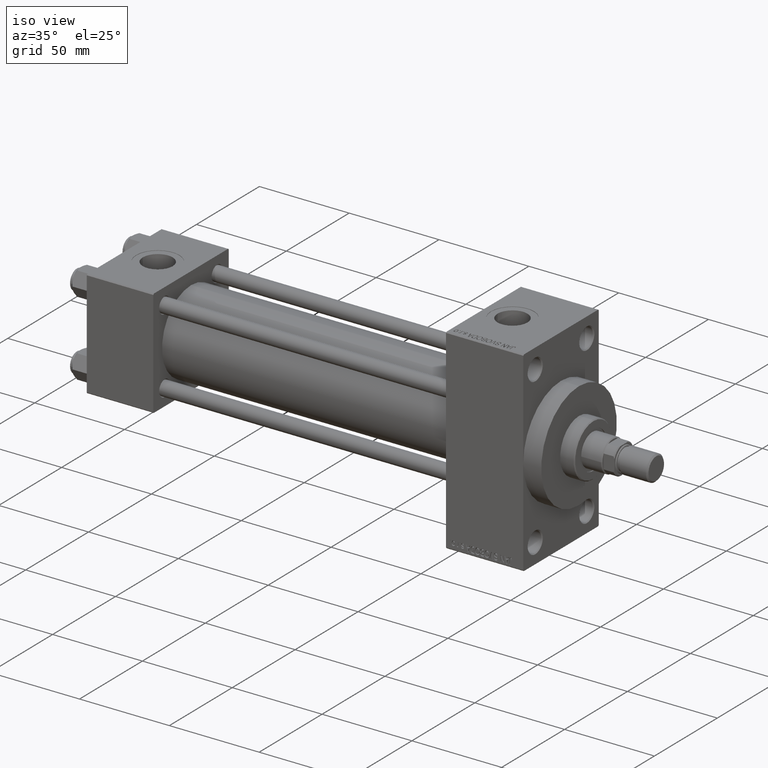
[diagram: clean part render]
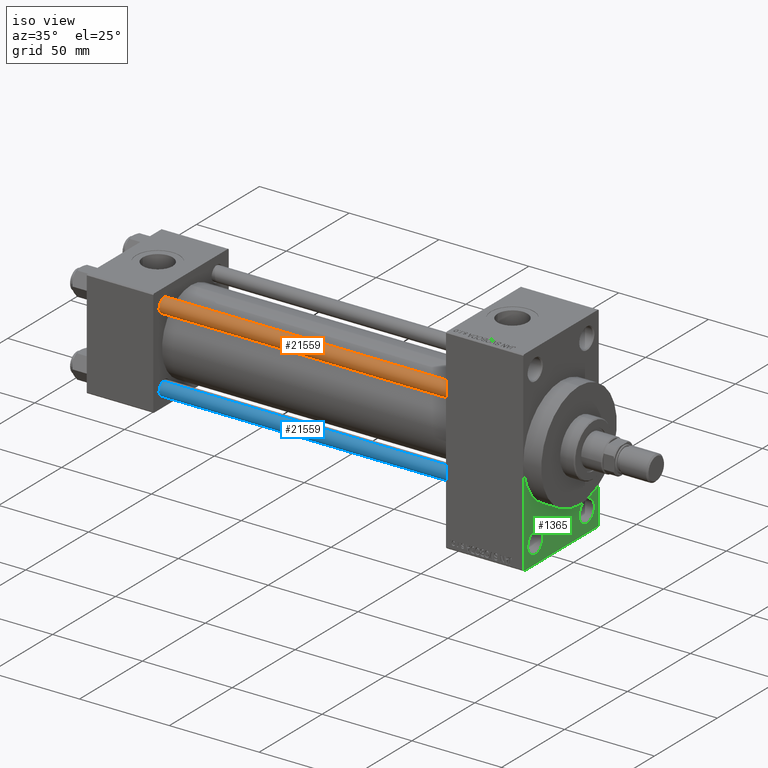
[diagram: same view with three faces highlighted in distinct colors, each labeled with its STEP entity id]
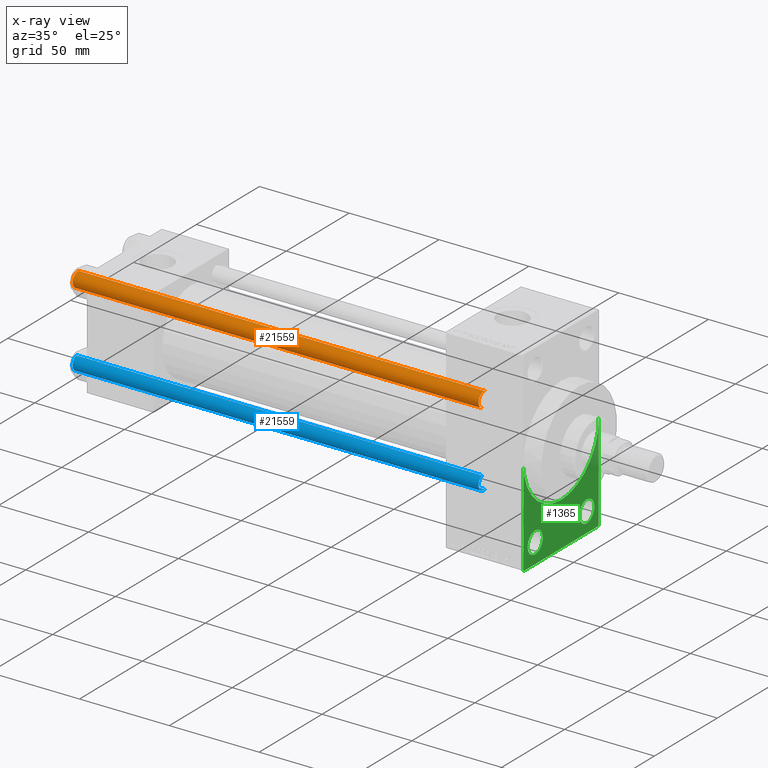
[diagram: x-ray of the same camera — body ghosted, the three highlighted faces saturated]
A machine part, iso view with three faces highlighted in distinct colors.
The next image is the same camera in x-ray (body ghosted, the three faces saturated) — at least one of them is partly hidden behind the body in this view.
Their STEP definitions:

[orange] entity #21559 — the highlighted cylindrical surface (edge-blend (fillet) strip) has radius 4 mm, axis along (1, 0, 0).
#514 = DIRECTION ( 'NONE',  ( 1.000000000000000000, 0.000000000000000000, 0.000000000000000000 ) ) ;
#851 = AXIS2_PLACEMENT_3D ( 'NONE', #45218, #26087, #25352 ) ;
#4223 = ORIENTED_EDGE ( 'NONE', *, *, #14376, .T. ) ;
#7701 = AXIS2_PLACEMENT_3D ( 'NONE', #25590, #40952, #26835 ) ;
#13357 = DIRECTION ( 'NONE',  ( -0.000000000000000000, -0.000000000000000000, -1.000000000000000000 ) ) ;
#13622 = VERTEX_POINT ( 'NONE', #39863 ) ;
#14376 = EDGE_CURVE ( 'NONE', #16387, #24323, #41592, .T. ) ;
#15762 = CIRCLE ( 'NONE', #7701, 4.000000000000000000 ) ;
#16387 = VERTEX_POINT ( 'NONE', #37169 ) ;
#17559 = FACE_OUTER_BOUND ( 'NONE', #38076, .T. ) ;
#17845 = CARTESIAN_POINT ( 'NONE',  ( -4.000000000000000000, 0.000000000000000000, 0.5000000000002224887 ) ) ;
#17941 = CARTESIAN_POINT ( 'NONE',  ( 4.000000000000000000, 4.898587196589411843E-16, 227.0000000000000000 ) ) ;
#18291 = CYLINDRICAL_SURFACE ( 'NONE', #851, 4.000000000000000000 ) ;
#19593 = CIRCLE ( 'NONE', #22827, 4.000000000000000000 ) ;
#21559 = ADVANCED_FACE ( 'NONE', ( #17559 ), #18291, .T. ) ;
#22827 = AXIS2_PLACEMENT_3D ( 'NONE', #39748, #34997, #514 ) ;
#23179 = EDGE_CURVE ( 'NONE', #13622, #35416, #44314, .T. ) ;
#23380 = VECTOR ( 'NONE', #13357, 1000.000000000000000 ) ;
#24323 = VERTEX_POINT ( 'NONE', #30646 ) ;
#25352 = DIRECTION ( 'NONE',  ( -1.000000000000000000, 0.000000000000000000, 0.000000000000000000 ) ) ;
#25514 = ORIENTED_EDGE ( 'NONE', *, *, #37188, .T. ) ;
#25590 = CARTESIAN_POINT ( 'NONE',  ( 0.000000000000000000, 0.000000000000000000, 226.5000000000001421 ) ) ;
#26087 = DIRECTION ( 'NONE',  ( -0.000000000000000000, -0.000000000000000000, -1.000000000000000000 ) ) ;
#26835 = DIRECTION ( 'NONE',  ( 1.000000000000000000, 0.000000000000000000, 0.000000000000000000 ) ) ;
#29449 = CARTESIAN_POINT ( 'NONE',  ( -4.000000000000000000, 0.000000000000000000, 227.0000000000000000 ) ) ;
#30452 = VECTOR ( 'NONE', #33305, 1000.000000000000000 ) ;
#30646 = CARTESIAN_POINT ( 'NONE',  ( 4.000000000000000000, 4.898587196589411843E-16, 0.5000000000002224887 ) ) ;
#32615 = EDGE_CURVE ( 'NONE', #24323, #35416, #19593, .T. ) ;
#33305 = DIRECTION ( 'NONE',  ( -0.000000000000000000, -0.000000000000000000, -1.000000000000000000 ) ) ;
#34997 = DIRECTION ( 'NONE',  ( -0.000000000000000000, -0.000000000000000000, 1.000000000000000000 ) ) ;
#35416 = VERTEX_POINT ( 'NONE', #17845 ) ;
#37169 = CARTESIAN_POINT ( 'NONE',  ( 4.000000000000000000, 4.898587196589411843E-16, 226.5000000000001421 ) ) ;
#37188 = EDGE_CURVE ( 'NONE', #13622, #16387, #15762, .T. ) ;
#38076 = EDGE_LOOP ( 'NONE', ( #25514, #4223, #41724, #42690 ) ) ;
#39748 = CARTESIAN_POINT ( 'NONE',  ( 0.000000000000000000, 0.000000000000000000, 0.5000000000002224887 ) ) ;
#39863 = CARTESIAN_POINT ( 'NONE',  ( -4.000000000000000000, 0.000000000000000000, 226.5000000000001421 ) ) ;
#40952 = DIRECTION ( 'NONE',  ( 0.000000000000000000, 0.000000000000000000, -1.000000000000000000 ) ) ;
#41592 = LINE ( 'NONE', #17941, #30452 ) ;
#41724 = ORIENTED_EDGE ( 'NONE', *, *, #32615, .T. ) ;
#42690 = ORIENTED_EDGE ( 'NONE', *, *, #23179, .F. ) ;
#44314 = LINE ( 'NONE', #29449, #23380 ) ;
#45218 = CARTESIAN_POINT ( 'NONE',  ( 0.000000000000000000, 0.000000000000000000, 227.0000000000000000 ) ) ;

[blue] entity #21559 — the highlighted cylindrical surface (edge-blend (fillet) strip) has radius 4 mm, axis along (-1, 0, 0).
#514 = DIRECTION ( 'NONE',  ( 1.000000000000000000, 0.000000000000000000, 0.000000000000000000 ) ) ;
#851 = AXIS2_PLACEMENT_3D ( 'NONE', #45218, #26087, #25352 ) ;
#4223 = ORIENTED_EDGE ( 'NONE', *, *, #14376, .T. ) ;
#7701 = AXIS2_PLACEMENT_3D ( 'NONE', #25590, #40952, #26835 ) ;
#13357 = DIRECTION ( 'NONE',  ( -0.000000000000000000, -0.000000000000000000, -1.000000000000000000 ) ) ;
#13622 = VERTEX_POINT ( 'NONE', #39863 ) ;
#14376 = EDGE_CURVE ( 'NONE', #16387, #24323, #41592, .T. ) ;
#15762 = CIRCLE ( 'NONE', #7701, 4.000000000000000000 ) ;
#16387 = VERTEX_POINT ( 'NONE', #37169 ) ;
#17559 = FACE_OUTER_BOUND ( 'NONE', #38076, .T. ) ;
#17845 = CARTESIAN_POINT ( 'NONE',  ( -4.000000000000000000, 0.000000000000000000, 0.5000000000002224887 ) ) ;
#17941 = CARTESIAN_POINT ( 'NONE',  ( 4.000000000000000000, 4.898587196589411843E-16, 227.0000000000000000 ) ) ;
#18291 = CYLINDRICAL_SURFACE ( 'NONE', #851, 4.000000000000000000 ) ;
#19593 = CIRCLE ( 'NONE', #22827, 4.000000000000000000 ) ;
#21559 = ADVANCED_FACE ( 'NONE', ( #17559 ), #18291, .T. ) ;
#22827 = AXIS2_PLACEMENT_3D ( 'NONE', #39748, #34997, #514 ) ;
#23179 = EDGE_CURVE ( 'NONE', #13622, #35416, #44314, .T. ) ;
#23380 = VECTOR ( 'NONE', #13357, 1000.000000000000000 ) ;
#24323 = VERTEX_POINT ( 'NONE', #30646 ) ;
#25352 = DIRECTION ( 'NONE',  ( -1.000000000000000000, 0.000000000000000000, 0.000000000000000000 ) ) ;
#25514 = ORIENTED_EDGE ( 'NONE', *, *, #37188, .T. ) ;
#25590 = CARTESIAN_POINT ( 'NONE',  ( 0.000000000000000000, 0.000000000000000000, 226.5000000000001421 ) ) ;
#26087 = DIRECTION ( 'NONE',  ( -0.000000000000000000, -0.000000000000000000, -1.000000000000000000 ) ) ;
#26835 = DIRECTION ( 'NONE',  ( 1.000000000000000000, 0.000000000000000000, 0.000000000000000000 ) ) ;
#29449 = CARTESIAN_POINT ( 'NONE',  ( -4.000000000000000000, 0.000000000000000000, 227.0000000000000000 ) ) ;
#30452 = VECTOR ( 'NONE', #33305, 1000.000000000000000 ) ;
#30646 = CARTESIAN_POINT ( 'NONE',  ( 4.000000000000000000, 4.898587196589411843E-16, 0.5000000000002224887 ) ) ;
#32615 = EDGE_CURVE ( 'NONE', #24323, #35416, #19593, .T. ) ;
#33305 = DIRECTION ( 'NONE',  ( -0.000000000000000000, -0.000000000000000000, -1.000000000000000000 ) ) ;
#34997 = DIRECTION ( 'NONE',  ( -0.000000000000000000, -0.000000000000000000, 1.000000000000000000 ) ) ;
#35416 = VERTEX_POINT ( 'NONE', #17845 ) ;
#37169 = CARTESIAN_POINT ( 'NONE',  ( 4.000000000000000000, 4.898587196589411843E-16, 226.5000000000001421 ) ) ;
#37188 = EDGE_CURVE ( 'NONE', #13622, #16387, #15762, .T. ) ;
#38076 = EDGE_LOOP ( 'NONE', ( #25514, #4223, #41724, #42690 ) ) ;
#39748 = CARTESIAN_POINT ( 'NONE',  ( 0.000000000000000000, 0.000000000000000000, 0.5000000000002224887 ) ) ;
#39863 = CARTESIAN_POINT ( 'NONE',  ( -4.000000000000000000, 0.000000000000000000, 226.5000000000001421 ) ) ;
#40952 = DIRECTION ( 'NONE',  ( 0.000000000000000000, 0.000000000000000000, -1.000000000000000000 ) ) ;
#41592 = LINE ( 'NONE', #17941, #30452 ) ;
#41724 = ORIENTED_EDGE ( 'NONE', *, *, #32615, .T. ) ;
#42690 = ORIENTED_EDGE ( 'NONE', *, *, #23179, .F. ) ;
#44314 = LINE ( 'NONE', #29449, #23380 ) ;
#45218 = CARTESIAN_POINT ( 'NONE',  ( 0.000000000000000000, 0.000000000000000000, 227.0000000000000000 ) ) ;

[green] entity #1365 — the highlighted planar face has unit normal (-1, 0, 0).
#18 = DIRECTION ( 'NONE',  ( 0.000000000000000000, 0.000000000000000000, -1.000000000000000000 ) ) ;
#676 = VERTEX_POINT ( 'NONE', #36465 ) ;
#1365 = ADVANCED_FACE ( 'NONE', ( #18020, #37643, #9962 ), #14232, .F. ) ;
#2142 = DIRECTION ( 'NONE',  ( -1.000000000000000000, 0.000000000000000000, -0.000000000000000000 ) ) ;
#2273 = ORIENTED_EDGE ( 'NONE', *, *, #25027, .T. ) ;
#2802 = CARTESIAN_POINT ( 'NONE',  ( 243.0000000000000000, 29.99999999999999645, 54.49999999999999289 ) ) ;
#2855 = AXIS2_PLACEMENT_3D ( 'NONE', #20548, #38942, #46979 ) ;
#3105 = LINE ( 'NONE', #33812, #47591 ) ;
#3275 = VERTEX_POINT ( 'NONE', #31346 ) ;
#3843 = ORIENTED_EDGE ( 'NONE', *, *, #38659, .T. ) ;
#4030 = CARTESIAN_POINT ( 'NONE',  ( 243.0000000000000000, 20.50000000000000000, -43.50000000000000000 ) ) ;
#5510 = DIRECTION ( 'NONE',  ( 0.000000000000000000, 0.000000000000000000, 1.000000000000000000 ) ) ;
#5945 = VECTOR ( 'NONE', #42725, 1000.000000000000000 ) ;
#5946 = DIRECTION ( 'NONE',  ( -1.000000000000000000, 0.000000000000000000, -0.000000000000000000 ) ) ;
#5979 = EDGE_CURVE ( 'NONE', #12202, #46127, #18948, .T. ) ;
#6133 = ORIENTED_EDGE ( 'NONE', *, *, #29623, .T. ) ;
#6245 = CARTESIAN_POINT ( 'NONE',  ( 243.0000000000000000, -20.50000000000000000, -37.50000000000002132 ) ) ;
#7542 = CIRCLE ( 'NONE', #21985, 5.999999999999977796 ) ;
#7766 = LINE ( 'NONE', #20328, #41114 ) ;
#8895 = VERTEX_POINT ( 'NONE', #39103 ) ;
#9194 = DIRECTION ( 'NONE',  ( 0.000000000000000000, 0.000000000000000000, 1.000000000000000000 ) ) ;
#9962 = FACE_OUTER_BOUND ( 'NONE', #33491, .T. ) ;
#10847 = CARTESIAN_POINT ( 'NONE',  ( 243.0000000000000000, 20.50000000000000000, -49.49999999999997158 ) ) ;
#10971 = ORIENTED_EDGE ( 'NONE', *, *, #13483, .F. ) ;
#11529 = CARTESIAN_POINT ( 'NONE',  ( 243.0000000000000000, 29.49999999999996803, -54.49999999999999289 ) ) ;
#11567 = DIRECTION ( 'NONE',  ( -1.000000000000000000, 0.000000000000000000, -0.000000000000000000 ) ) ;
#12202 = VERTEX_POINT ( 'NONE', #18389 ) ;
#12288 = ORIENTED_EDGE ( 'NONE', *, *, #22750, .F. ) ;
#12304 = DIRECTION ( 'NONE',  ( 0.000000000000000000, 0.000000000000000000, 1.000000000000000000 ) ) ;
#13483 = EDGE_CURVE ( 'NONE', #3275, #42750, #28007, .T. ) ;
#13736 = AXIS2_PLACEMENT_3D ( 'NONE', #35832, #24501, #24246 ) ;
#14232 = PLANE ( 'NONE',  #19558 ) ;
#14478 = DIRECTION ( 'NONE',  ( -0.000000000000000000, 0.000000000000000000, 1.000000000000000000 ) ) ;
#15501 = AXIS2_PLACEMENT_3D ( 'NONE', #4030, #11567, #12304 ) ;
#15506 = VERTEX_POINT ( 'NONE', #18204 ) ;
#16481 = VECTOR ( 'NONE', #18, 1000.000000000000000 ) ;
#17118 = EDGE_LOOP ( 'NONE', ( #35889, #21254 ) ) ;
#17693 = DIRECTION ( 'NONE',  ( 1.000000000000000000, 0.000000000000000000, 0.000000000000000000 ) ) ;
#18020 = FACE_BOUND ( 'NONE', #36432, .T. ) ;
#18099 = ORIENTED_EDGE ( 'NONE', *, *, #42983, .F. ) ;
#18133 = ORIENTED_EDGE ( 'NONE', *, *, #47635, .T. ) ;
#18204 = CARTESIAN_POINT ( 'NONE',  ( 243.0000000000000000, -30.00000000000000000, -54.00000000000001421 ) ) ;
#18389 = CARTESIAN_POINT ( 'NONE',  ( 243.0000000000000000, -20.50000000000000000, -49.49999999999997158 ) ) ;
#18706 = DIRECTION ( 'NONE',  ( -0.000000000000000000, 0.7071067811865672237, 0.7071067811865279218 ) ) ;
#18948 = CIRCLE ( 'NONE', #2855, 5.999999999999977796 ) ;
#19343 = DIRECTION ( 'NONE',  ( 0.000000000000000000, 0.7071067811865352493, -0.7071067811865597852 ) ) ;
#19558 = AXIS2_PLACEMENT_3D ( 'NONE', #48464, #5946, #14478 ) ;
#20073 = EDGE_CURVE ( 'NONE', #676, #37779, #32113, .T. ) ;
#20328 = CARTESIAN_POINT ( 'NONE',  ( 243.0000000000000000, -29.50000000000002842, -54.50000000000000000 ) ) ;
#20548 = CARTESIAN_POINT ( 'NONE',  ( 243.0000000000000000, -20.50000000000000000, -43.50000000000000000 ) ) ;
#21248 = CARTESIAN_POINT ( 'NONE',  ( 243.0000000000000000, 29.99999999999999645, -54.49999999999999289 ) ) ;
#21254 = ORIENTED_EDGE ( 'NONE', *, *, #20073, .T. ) ;
#21985 = AXIS2_PLACEMENT_3D ( 'NONE', #32099, #2142, #9194 ) ;
#22750 = EDGE_CURVE ( 'NONE', #28098, #3275, #25764, .T. ) ;
#22843 = CARTESIAN_POINT ( 'NONE',  ( 243.0000000000000000, -30.00000000000000000, 54.50000000000000000 ) ) ;
#23170 = AXIS2_PLACEMENT_3D ( 'NONE', #39601, #17693, #33045 ) ;
#24246 = DIRECTION ( 'NONE',  ( 0.000000000000000000, 0.000000000000000000, -1.000000000000000000 ) ) ;
#24273 = DIRECTION ( 'NONE',  ( 0.000000000000000000, -1.000000000000000000, -1.156482317317871478E-16 ) ) ;
#24501 = DIRECTION ( 'NONE',  ( 1.000000000000000000, 0.000000000000000000, 0.000000000000000000 ) ) ;
#25027 = EDGE_CURVE ( 'NONE', #30604, #8895, #3105, .T. ) ;
#25764 = CIRCLE ( 'NONE', #13736, 30.00000000000000000 ) ;
#27010 = EDGE_CURVE ( 'NONE', #37779, #676, #40405, .T. ) ;
#27296 = AXIS2_PLACEMENT_3D ( 'NONE', #47540, #35238, #5510 ) ;
#28007 = CIRCLE ( 'NONE', #23170, 30.00000000000000000 ) ;
#28098 = VERTEX_POINT ( 'NONE', #42349 ) ;
#29623 = EDGE_CURVE ( 'NONE', #28098, #15506, #49767, .T. ) ;
#30338 = CARTESIAN_POINT ( 'NONE',  ( 243.0000000000000000, 30.00000000000000000, 0.000000000000000000 ) ) ;
#30604 = VERTEX_POINT ( 'NONE', #11529 ) ;
#31346 = CARTESIAN_POINT ( 'NONE',  ( 243.0000000000000000, 3.673940397442059178E-15, -30.00000000000000000 ) ) ;
#31839 = LINE ( 'NONE', #21248, #36349 ) ;
#32099 = CARTESIAN_POINT ( 'NONE',  ( 243.0000000000000000, -20.50000000000000000, -43.50000000000000000 ) ) ;
#32113 = CIRCLE ( 'NONE', #27296, 5.999999999999977796 ) ;
#33045 = DIRECTION ( 'NONE',  ( 0.000000000000000000, 0.000000000000000000, -1.000000000000000000 ) ) ;
#33491 = EDGE_LOOP ( 'NONE', ( #6133, #3843, #18099, #2273, #39399, #10971, #12288 ) ) ;
#33812 = CARTESIAN_POINT ( 'NONE',  ( 243.0000000000000000, 29.99999999999999645, -53.99999999999999289 ) ) ;
#34987 = EDGE_CURVE ( 'NONE', #42750, #8895, #45076, .T. ) ;
#35238 = DIRECTION ( 'NONE',  ( -1.000000000000000000, 0.000000000000000000, -0.000000000000000000 ) ) ;
#35832 = CARTESIAN_POINT ( 'NONE',  ( 243.0000000000000000, 0.000000000000000000, 0.000000000000000000 ) ) ;
#35889 = ORIENTED_EDGE ( 'NONE', *, *, #27010, .T. ) ;
#36349 = VECTOR ( 'NONE', #24273, 1000.000000000000000 ) ;
#36432 = EDGE_LOOP ( 'NONE', ( #45954, #18133 ) ) ;
#36465 = CARTESIAN_POINT ( 'NONE',  ( 243.0000000000000000, 20.50000000000000000, -37.50000000000002132 ) ) ;
#37643 = FACE_BOUND ( 'NONE', #17118, .T. ) ;
#37779 = VERTEX_POINT ( 'NONE', #10847 ) ;
#38659 = EDGE_CURVE ( 'NONE', #15506, #41745, #7766, .T. ) ;
#38942 = DIRECTION ( 'NONE',  ( -1.000000000000000000, 0.000000000000000000, -0.000000000000000000 ) ) ;
#39103 = CARTESIAN_POINT ( 'NONE',  ( 243.0000000000000000, 29.99999999999999645, -53.99999999999999289 ) ) ;
#39399 = ORIENTED_EDGE ( 'NONE', *, *, #34987, .F. ) ;
#39601 = CARTESIAN_POINT ( 'NONE',  ( 243.0000000000000000, 0.000000000000000000, 0.000000000000000000 ) ) ;
#40405 = CIRCLE ( 'NONE', #15501, 5.999999999999977796 ) ;
#41114 = VECTOR ( 'NONE', #19343, 1000.000000000000000 ) ;
#41745 = VERTEX_POINT ( 'NONE', #44706 ) ;
#42349 = CARTESIAN_POINT ( 'NONE',  ( 243.0000000000000000, -30.00000000000000000, 0.000000000000000000 ) ) ;
#42725 = DIRECTION ( 'NONE',  ( 0.000000000000000000, 0.000000000000000000, -1.000000000000000000 ) ) ;
#42750 = VERTEX_POINT ( 'NONE', #30338 ) ;
#42983 = EDGE_CURVE ( 'NONE', #30604, #41745, #31839, .T. ) ;
#44706 = CARTESIAN_POINT ( 'NONE',  ( 243.0000000000000000, -29.50000000000002842, -54.50000000000000000 ) ) ;
#45076 = LINE ( 'NONE', #2802, #16481 ) ;
#45954 = ORIENTED_EDGE ( 'NONE', *, *, #5979, .T. ) ;
#46127 = VERTEX_POINT ( 'NONE', #6245 ) ;
#46979 = DIRECTION ( 'NONE',  ( 0.000000000000000000, 0.000000000000000000, 1.000000000000000000 ) ) ;
#47540 = CARTESIAN_POINT ( 'NONE',  ( 243.0000000000000000, 20.50000000000000000, -43.50000000000000000 ) ) ;
#47591 = VECTOR ( 'NONE', #18706, 1000.000000000000000 ) ;
#47635 = EDGE_CURVE ( 'NONE', #46127, #12202, #7542, .T. ) ;
#48464 = CARTESIAN_POINT ( 'NONE',  ( 243.0000000000000000, 0.000000000000000000, 0.000000000000000000 ) ) ;
#49767 = LINE ( 'NONE', #22843, #5945 ) ;